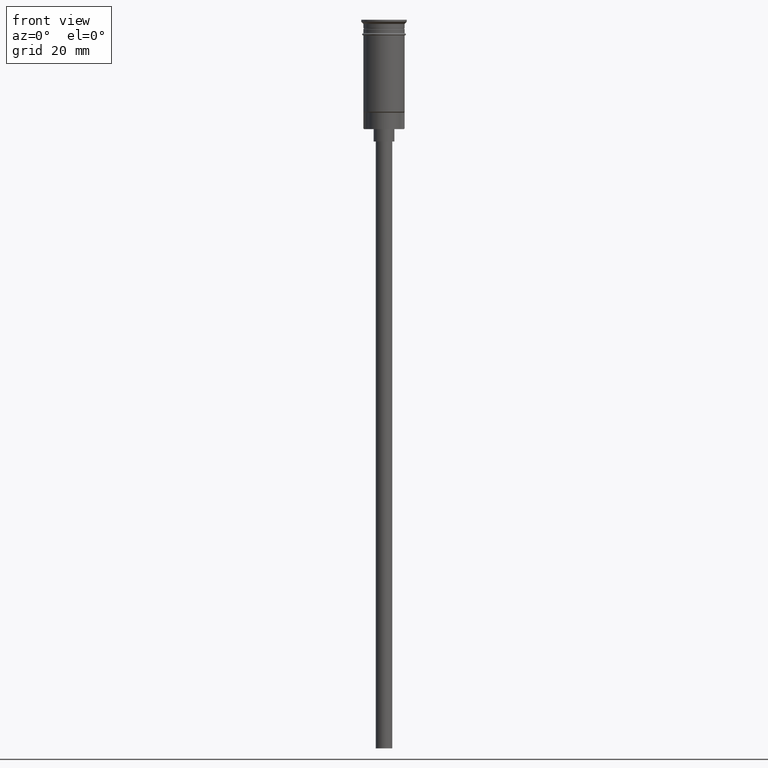
[diagram: clean part render]
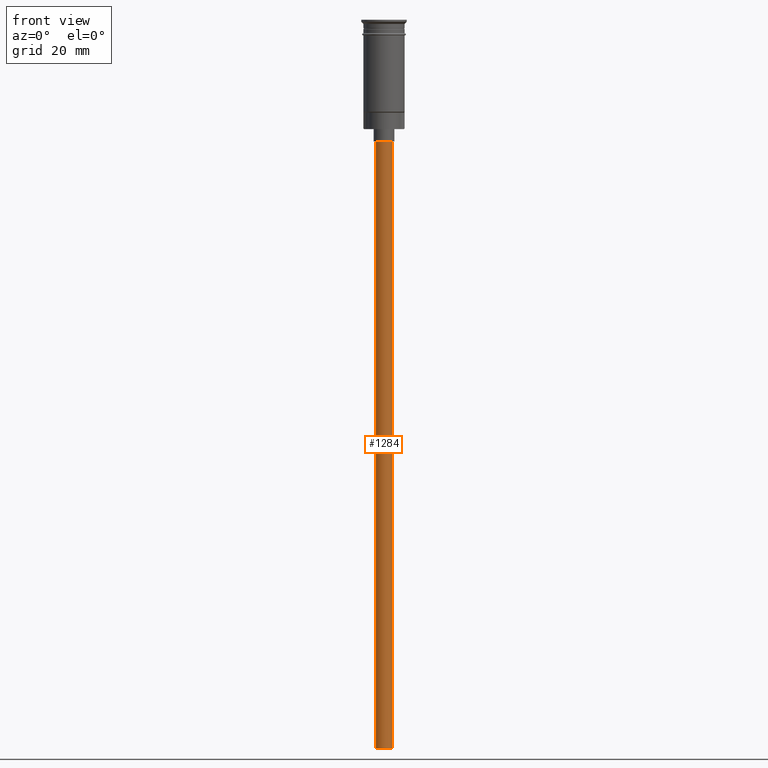
[diagram: same view with one face highlighted and labeled with its STEP entity id]
A machine part, front view. The second image highlights one B-rep face of the part: STEP entity #1284.
In plain terms, the highlighted cylindrical surface (edge-blend (fillet) strip) has radius 2 mm, axis along (-0, -0, 1).
Its self-contained STEP definition (entity closure, byte-faithful):
#72 = EDGE_LOOP ( 'NONE', ( #1406, #682, #1531, #1321 ) ) ;
#87 = EDGE_CURVE ( 'NONE', #1250, #406, #927, .T. ) ;
#98 = DIRECTION ( 'NONE',  ( 0.000000000000000000, 0.000000000000000000, -1.000000000000000000 ) ) ;
#104 = CARTESIAN_POINT ( 'NONE',  ( 2.000000000000000000, 0.000000000000000000, -176.5000000000000000 ) ) ;
#105 = DIRECTION ( 'NONE',  ( -0.000000000000000000, -0.000000000000000000, 1.000000000000000000 ) ) ;
#137 = EDGE_CURVE ( 'NONE', #607, #270, #1076, .T. ) ;
#160 = AXIS2_PLACEMENT_3D ( 'NONE', #925, #455, #935 ) ;
#270 = VERTEX_POINT ( 'NONE', #878 ) ;
#284 = CIRCLE ( 'NONE', #160, 2.000000000000000000 ) ;
#289 = CARTESIAN_POINT ( 'NONE',  ( -2.000000000000000000, 2.449293598294706414E-16, -29.50000000000000000 ) ) ;
#301 = CYLINDRICAL_SURFACE ( 'NONE', #1033, 2.000000000000000000 ) ;
#406 = VERTEX_POINT ( 'NONE', #289 ) ;
#441 = DIRECTION ( 'NONE',  ( 1.000000000000000000, 0.000000000000000000, 0.000000000000000000 ) ) ;
#455 = DIRECTION ( 'NONE',  ( 0.000000000000000000, 0.000000000000000000, -1.000000000000000000 ) ) ;
#558 = DIRECTION ( 'NONE',  ( -1.000000000000000000, 0.000000000000000000, 0.000000000000000000 ) ) ;
#584 = EDGE_CURVE ( 'NONE', #607, #1250, #284, .T. ) ;
#607 = VERTEX_POINT ( 'NONE', #104 ) ;
#620 = VECTOR ( 'NONE', #1069, 1000.000000000000000 ) ;
#682 = ORIENTED_EDGE ( 'NONE', *, *, #584, .F. ) ;
#686 = CARTESIAN_POINT ( 'NONE',  ( 2.000000000000000000, 0.000000000000000000, -176.5000000000000000 ) ) ;
#878 = CARTESIAN_POINT ( 'NONE',  ( 2.000000000000000000, 0.000000000000000000, -29.50000000000000000 ) ) ;
#883 = CIRCLE ( 'NONE', #1218, 2.000000000000000000 ) ;
#923 = FACE_OUTER_BOUND ( 'NONE', #72, .T. ) ;
#925 = CARTESIAN_POINT ( 'NONE',  ( 0.000000000000000000, 0.000000000000000000, -176.5000000000000000 ) ) ;
#927 = LINE ( 'NONE', #1343, #1160 ) ;
#935 = DIRECTION ( 'NONE',  ( -1.000000000000000000, 0.000000000000000000, 0.000000000000000000 ) ) ;
#1009 = EDGE_CURVE ( 'NONE', #270, #406, #883, .T. ) ;
#1021 = DIRECTION ( 'NONE',  ( -0.000000000000000000, -0.000000000000000000, 1.000000000000000000 ) ) ;
#1033 = AXIS2_PLACEMENT_3D ( 'NONE', #1303, #1021, #441 ) ;
#1069 = DIRECTION ( 'NONE',  ( -0.000000000000000000, -0.000000000000000000, 1.000000000000000000 ) ) ;
#1076 = LINE ( 'NONE', #686, #620 ) ;
#1160 = VECTOR ( 'NONE', #105, 1000.000000000000000 ) ;
#1218 = AXIS2_PLACEMENT_3D ( 'NONE', #1295, #98, #558 ) ;
#1250 = VERTEX_POINT ( 'NONE', #1419 ) ;
#1284 = ADVANCED_FACE ( 'NONE', ( #923 ), #301, .T. ) ;
#1295 = CARTESIAN_POINT ( 'NONE',  ( 0.000000000000000000, 0.000000000000000000, -29.50000000000000000 ) ) ;
#1303 = CARTESIAN_POINT ( 'NONE',  ( 0.000000000000000000, 0.000000000000000000, -176.5000000000000000 ) ) ;
#1321 = ORIENTED_EDGE ( 'NONE', *, *, #1009, .T. ) ;
#1343 = CARTESIAN_POINT ( 'NONE',  ( -2.000000000000000000, 2.449293598294706414E-16, -176.5000000000000000 ) ) ;
#1406 = ORIENTED_EDGE ( 'NONE', *, *, #87, .F. ) ;
#1419 = CARTESIAN_POINT ( 'NONE',  ( -2.000000000000000000, 2.449293598294706414E-16, -176.5000000000000000 ) ) ;
#1531 = ORIENTED_EDGE ( 'NONE', *, *, #137, .T. ) ;